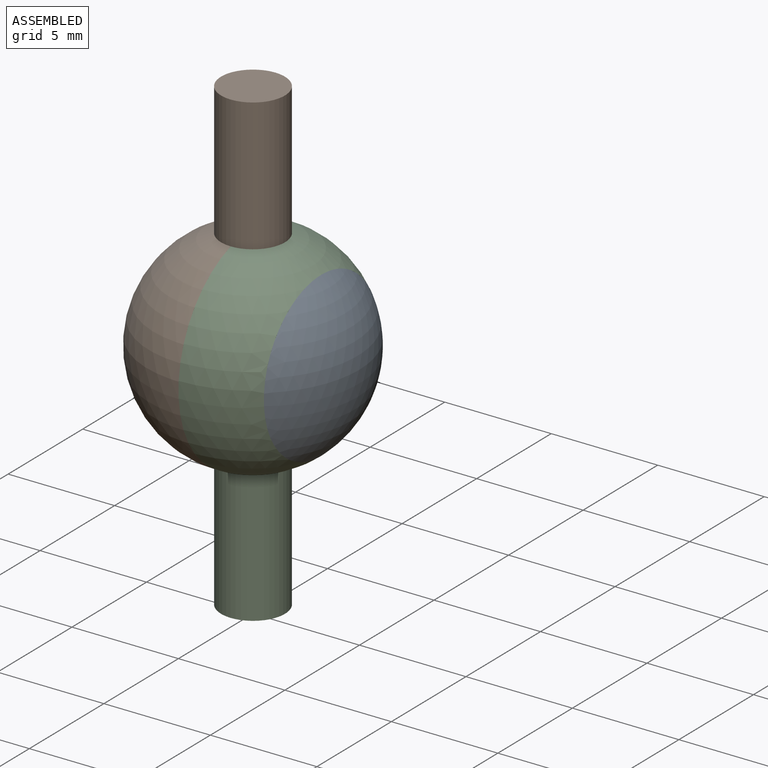
[diagram: assembled view]
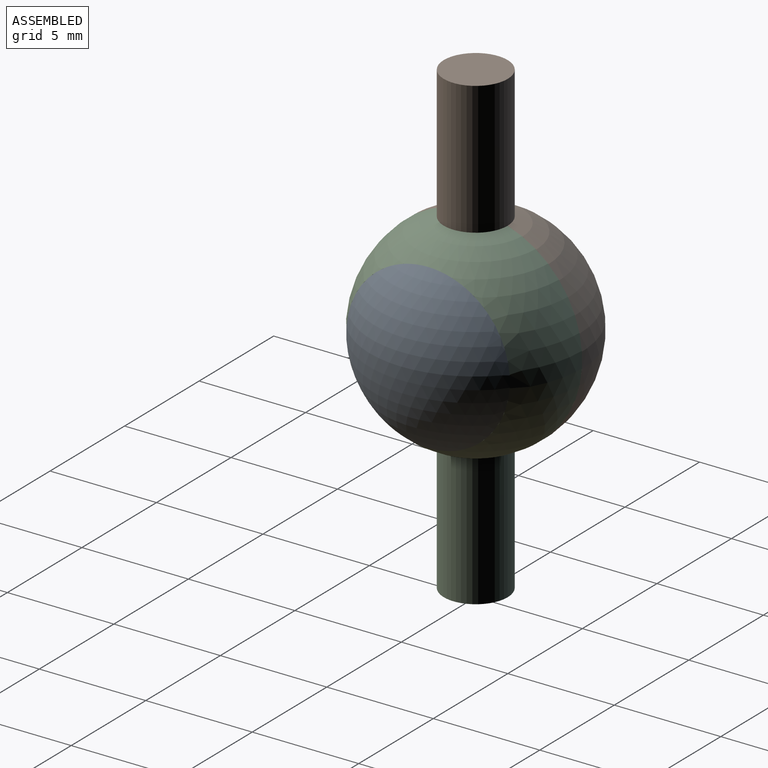
[diagram: assembled view, second angle]
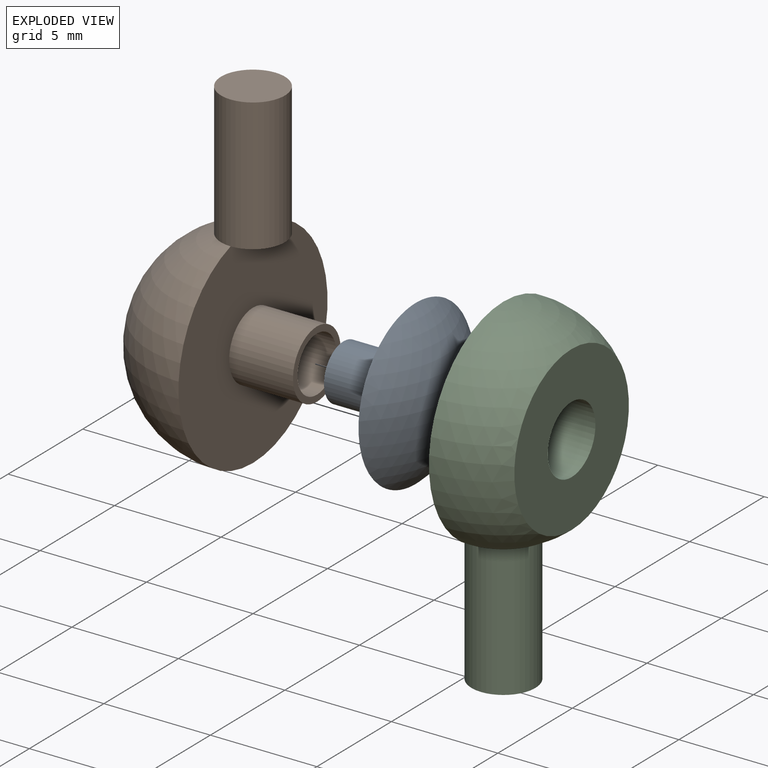
[diagram: exploded view]
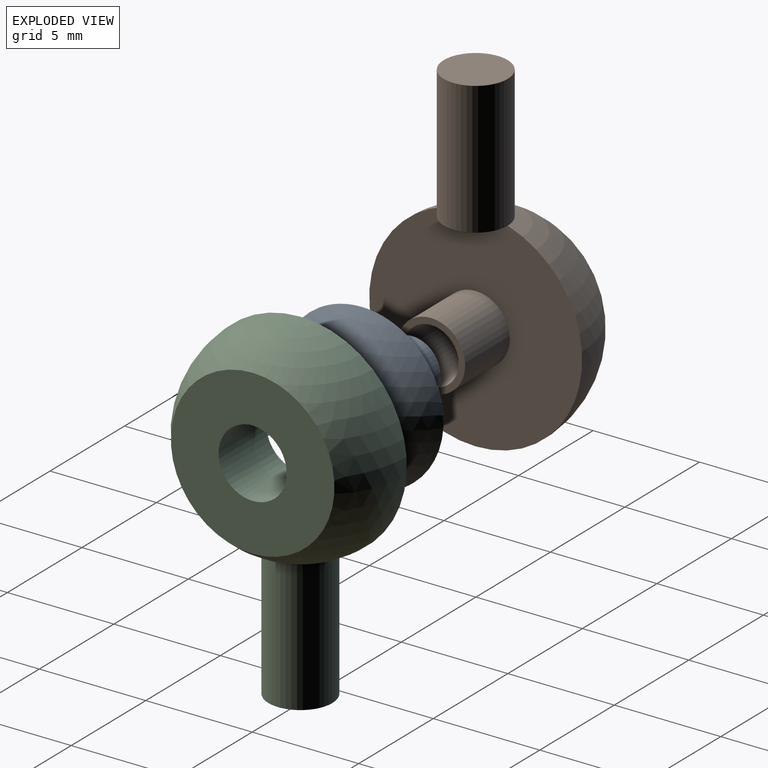
[diagram: exploded view, second angle]
ASSEMBLY  parts=3 mates=2
PART A: 4 faces, bbox 5.2x7.7x7.7 mm
  f0: sphere r=5mm, area 56.6mm2, adj f1
  f1: plane 7.68x7.68mm, normal (-1,0,0), area 41.1mm2, adj f0,f2
  f2: cylinder r=1.3mm len=3.4mm, axis (-1,0,0), area 27.8mm2, adj f1,f3
  f3: plane 2.6x2.6mm, normal (-1,0,0), area 5.3mm2, adj f2
PART B: 9 faces, bbox 8x10x16 mm
  f0: cylinder r=1.5mm len=6.23mm, axis (0,0,1), area 58.7mm2, adj f1,f2,f4
  f1: plane 3x3mm, normal (0,0,1), area 7.1mm2, adj f0
  f2: sphere r=5mm, area 153.5mm2, adj f0,f3
  f3: plane 10x10mm, normal (1,0,0), area 70.5mm2, adj f2,f4,f5
  f4: sphere r=5mm, area 3.6mm2, adj f0,f3
  f5: cylinder r=1.6mm len=3.2mm, axis (-1,0,0), area 30.2mm2, adj f3,f6
  f6: plane 3.2x3.2mm, normal (1,0,0), area 2.7mm2, adj f5,f7
  f7: cylinder r=1.3mm len=3.2mm, axis (1,0,0), area 26.1mm2, adj f6,f8
  f8: plane 2.6x2.6mm, normal (1,0,0), area 5.3mm2, adj f7
PART C: 7 faces, bbox 6.5x10x16 mm
  f0: sphere r=5mm, area 96.9mm2, adj f1,f3,f5
  f1: cylinder r=1.5mm len=6.23mm, axis (0,0,-1), area 58.7mm2, adj f0,f2,f4
  f2: plane 3x3mm, normal (0,0,-1), area 7.1mm2, adj f1
  f3: plane 10x10mm, normal (-1,0,0), area 70.5mm2, adj f0,f4,f6
  f4: sphere r=5mm, area 3.6mm2, adj f1,f3
  f5: plane 7.68x7.68mm, normal (1,0,0), area 38.3mm2, adj f0,f6
  f6: cylinder r=1.6mm len=3.2mm, axis (-1,0,0), area 32.2mm2, adj f3,f5
PLACE A t=(0,0,-0.02)mm
PLACE B t=(0,0,-0.02)mm
PLACE C t=(0,0,-0.02)mm fixed
MATE fastened A.f2 <-> B.f7  axis (-1,0,0) through (-0.2,0,-0.02)mm
MATE revolute B.f5 <-> C.f6  axis (1,0,0) through (0,0,-0.02)mm
